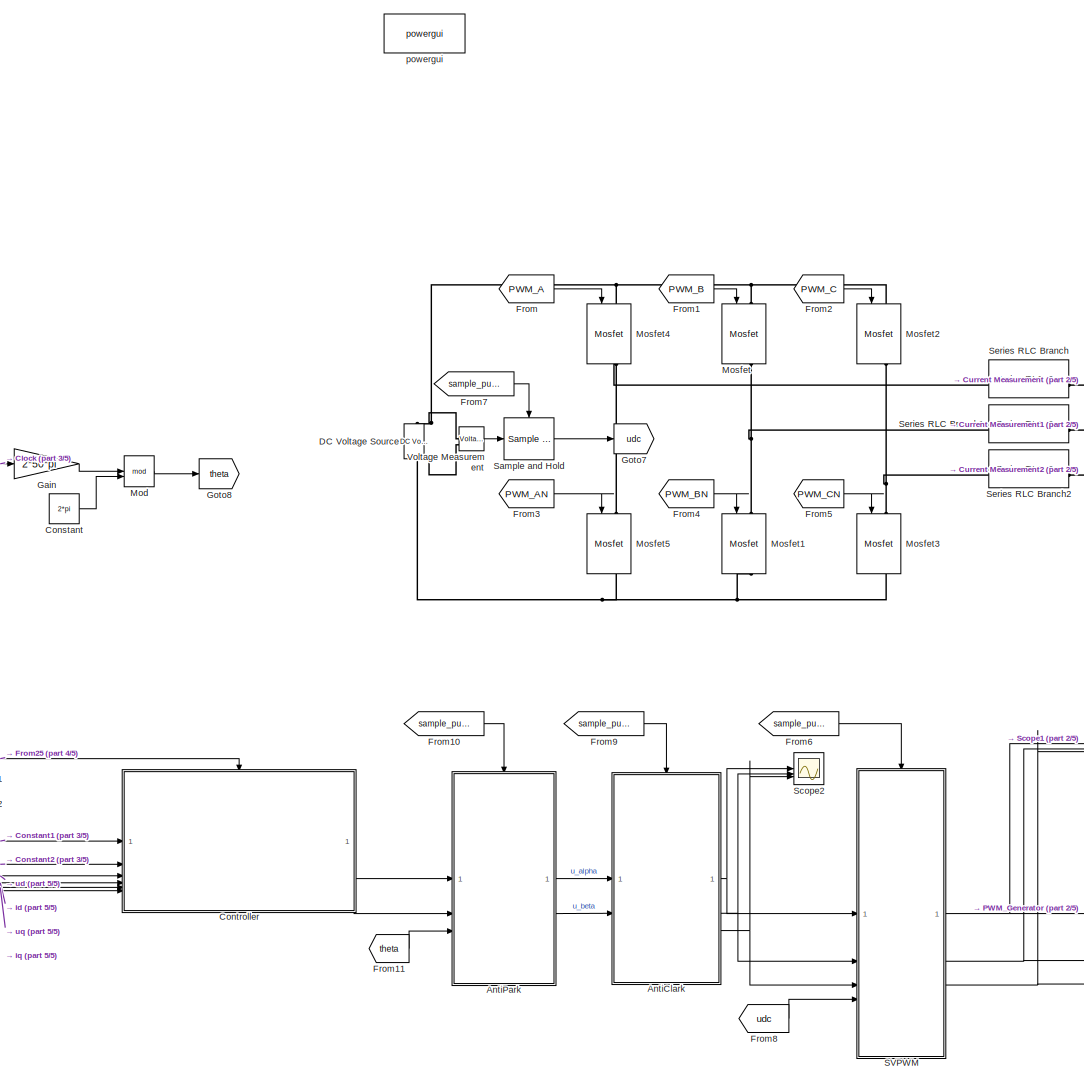
[diagram: root canvas - part 1/5, central region]
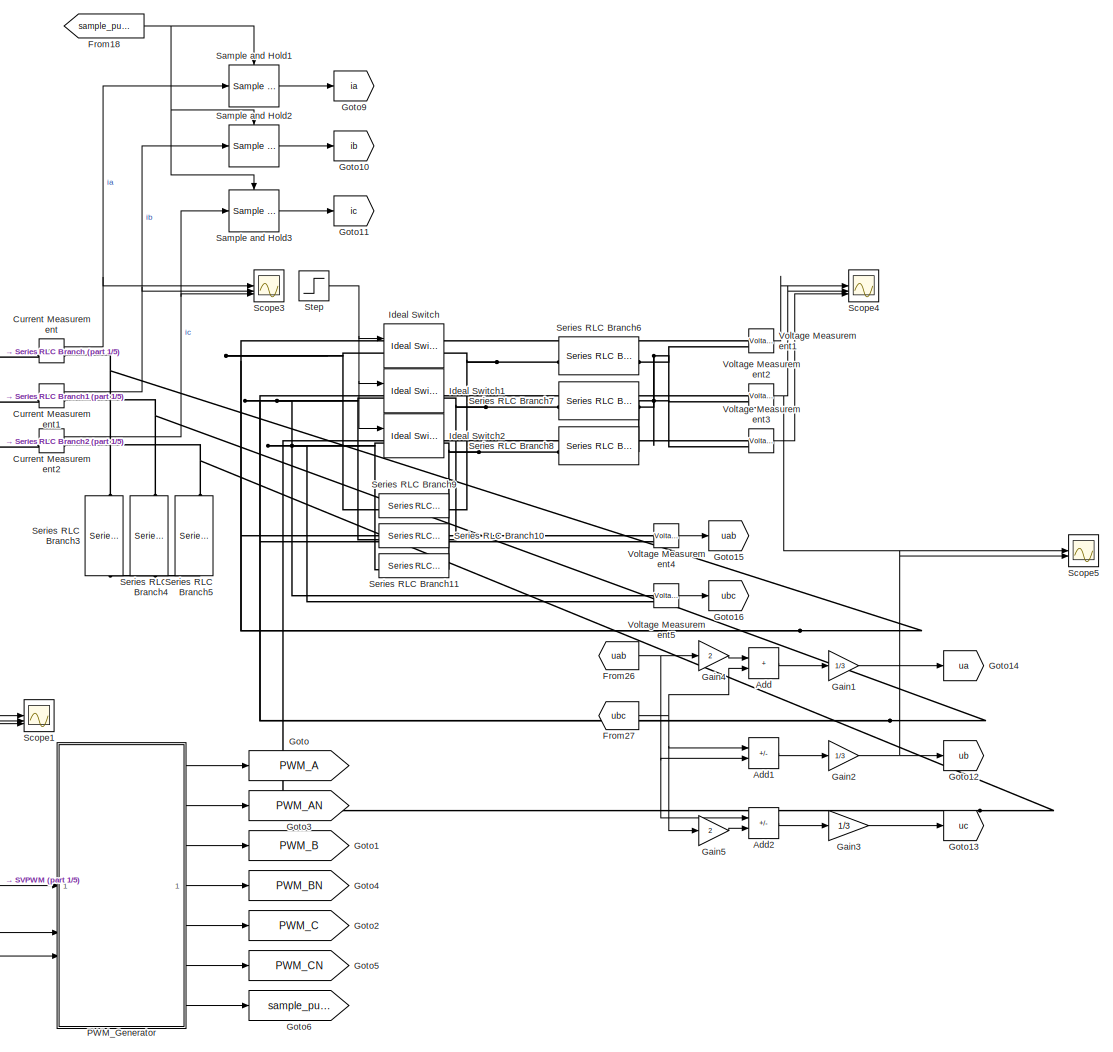
[diagram: root canvas - part 2/5, middle right region]
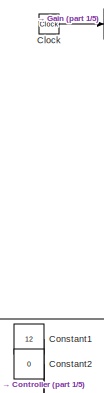
[diagram: root canvas - part 3/5, central region]
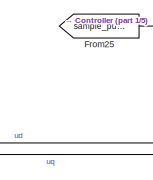
[diagram: root canvas - part 4/5, middle left region]
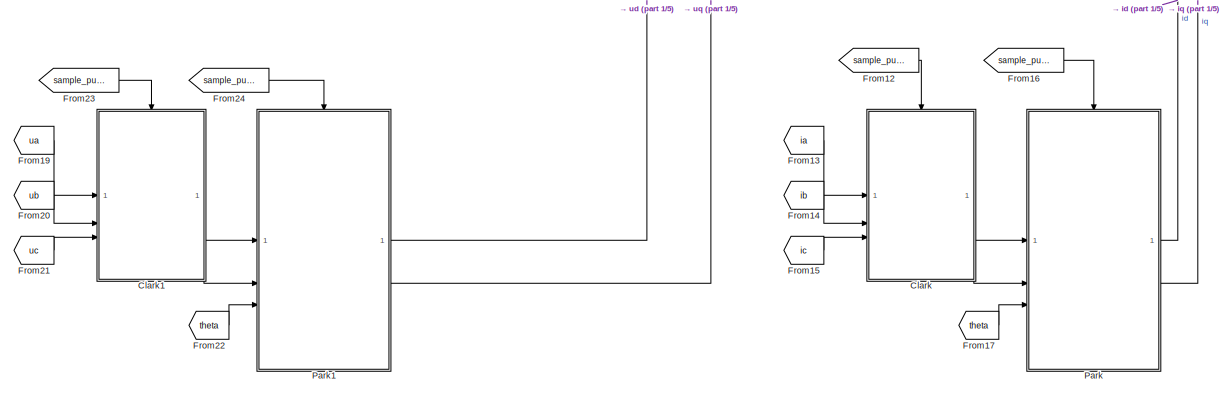
[diagram: root canvas - part 5/5, bottom left region]
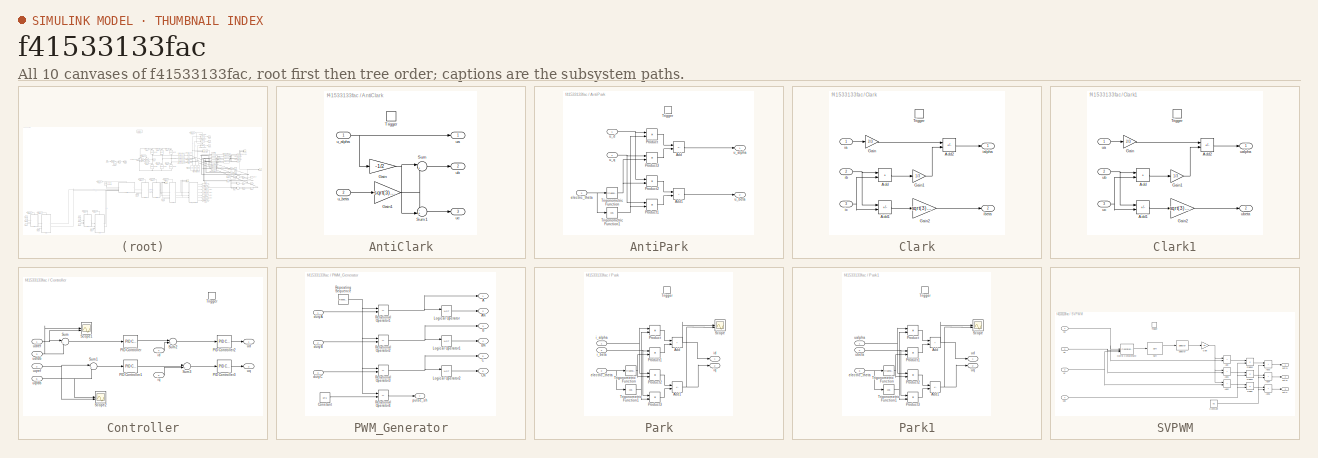
[diagram: thumbnail index - all 10 canvases of the model, root first then tree order]
MODEL slx_f41533133fac
KIND model
CONFIG AbsTol = auto
CONFIG EnableMultiTasking = off
CONFIG FixedStep = 1e-6
CONFIG MaxStep = 1e-7
CONFIG MinStep = auto
CONFIG RelTol = 1e-5
CONFIG SampleTimeConstraint = Unconstrained
CONFIG SolverName = VariableStepAuto
CONFIG StartTime = 0.0
CONFIG StopTime = 1
BLOCK [Sum] Add
  IconShape = rectangular
BLOCK [Sum] Add1
  IconShape = rectangular
  Inputs = +-
BLOCK [Sum] Add2
  IconShape = rectangular
  Inputs = --
BLOCK [SubSystem] AntiClark
BLOCK [Gain] AntiClark/Gain
  Gain = -1/2
BLOCK [Gain] AntiClark/Gain1
  Gain = sqrt(3)/2
BLOCK [Sum] AntiClark/Sum
  Inputs = |++
BLOCK [Sum] AntiClark/Sum1
  Inputs = -+|
BLOCK [TriggerPort] AntiClark/Trigger
  StatesWhenEnabling = held
  VariantControl = (inherit)
BLOCK [Inport] AntiClark/u_alpha
BLOCK [Inport] AntiClark/u_beta
  Port = 2
BLOCK [Outport] AntiClark/ua
BLOCK [Outport] AntiClark/ub
  Port = 2
BLOCK [Outport] AntiClark/uc
  Port = 3
BLOCK [SubSystem] AntiPark
BLOCK [Sum] AntiPark/Add
  IconShape = rectangular
  Inputs = +-
BLOCK [Sum] AntiPark/Add1
  IconShape = rectangular
BLOCK [Product] AntiPark/Product
BLOCK [Product] AntiPark/Product1
BLOCK [Product] AntiPark/Product2
BLOCK [Product] AntiPark/Product3
BLOCK [TriggerPort] AntiPark/Trigger
  StatesWhenEnabling = held
  VariantControl = (inherit)
BLOCK [Trigonometry] AntiPark/Trigonometric Function
BLOCK [Trigonometry] AntiPark/Trigonometric Function1
  Operator = cos
BLOCK [Inport] AntiPark/electric_theta
  Port = 3
BLOCK [Outport] AntiPark/u_alpha
BLOCK [Outport] AntiPark/u_beta
  Port = 2
BLOCK [Inport] AntiPark/u_d
BLOCK [Inport] AntiPark/u_q
  Port = 2
BLOCK [SubSystem] Clark
BLOCK [Sum] Clark/Add
  IconShape = rectangular
BLOCK [Sum] Clark/Add1
  IconShape = rectangular
  Inputs = +-
BLOCK [Sum] Clark/Add2
  IconShape = rectangular
  Inputs = +-
BLOCK [Gain] Clark/Gain
  Gain = 2/3
BLOCK [Gain] Clark/Gain1
  Gain = 1/3
BLOCK [Gain] Clark/Gain2
  Gain = sqrt(3)/3
BLOCK [TriggerPort] Clark/Trigger
  StatesWhenEnabling = held
  VariantControl = (inherit)
BLOCK [Inport] Clark/ia
BLOCK [Outport] Clark/ialpha
BLOCK [Inport] Clark/ib
  Port = 2
BLOCK [Outport] Clark/ibeta
  Port = 2
BLOCK [Inport] Clark/ic
  Port = 3
BLOCK [SubSystem] Clark1
BLOCK [Sum] Clark1/Add
  IconShape = rectangular
BLOCK [Sum] Clark1/Add1
  IconShape = rectangular
  Inputs = +-
BLOCK [Sum] Clark1/Add2
  IconShape = rectangular
  Inputs = +-
BLOCK [Gain] Clark1/Gain
  Gain = 2/3
BLOCK [Gain] Clark1/Gain1
  Gain = 1/3
BLOCK [Gain] Clark1/Gain2
  Gain = sqrt(3)/3
BLOCK [TriggerPort] Clark1/Trigger
  StatesWhenEnabling = held
  VariantControl = (inherit)
BLOCK [Inport] Clark1/ua
BLOCK [Outport] Clark1/ualpha
BLOCK [Inport] Clark1/ub
  Port = 2
BLOCK [Outport] Clark1/ubeta
  Port = 2
BLOCK [Inport] Clark1/uc
  Port = 3
BLOCK [Clock] Clock
BLOCK [Constant] Constant
  Value = 2*pi
BLOCK [Constant] Constant1
  Value = 12
BLOCK [Constant] Constant2
  Value = 0
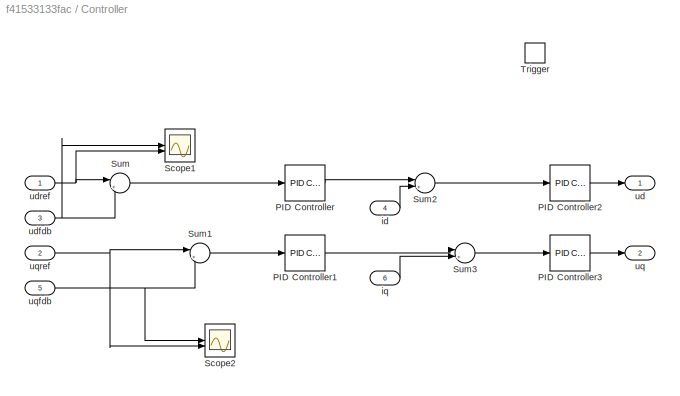
BLOCK [SubSystem] Controller
BLOCK [Reference] Controller/PID Controller  REF=slpidlib/PID Controller
  LibrarySourceBlock = simulink/Continuous/PID Controller
  SourceBlock = slpidlib/PID Controller
  SourceType = PID 1dof
BLOCK [Reference] Controller/PID Controller1  REF=slpidlib/PID Controller
  LibrarySourceBlock = simulink/Continuous/PID Controller
  SourceBlock = slpidlib/PID Controller
  SourceType = PID 1dof
BLOCK [Reference] Controller/PID Controller2  REF=slpidlib/PID Controller
  LibrarySourceBlock = simulink/Continuous/PID Controller
  SourceBlock = slpidlib/PID Controller
  SourceType = PID 1dof
BLOCK [Reference] Controller/PID Controller3  REF=slpidlib/PID Controller
  LibrarySourceBlock = simulink/Continuous/PID Controller
  SourceBlock = slpidlib/PID Controller
  SourceType = PID 1dof
BLOCK [Scope] Controller/Scope1
  Floating = off
  NumInputPorts = 2
  ScopeSpecificationString = Simulink.scopes.TimeScopeBlockCfg('CurrentConfiguration', extmgr.ConfigurationSet(extmgr.Configuration('Core','General UI',true,'FigureColor',[1 1 1]),extmgr.Configuration('Core','Source UI',true),extmgr.Configuration('Sources','WiredSimulink',true,'DataLoggingVariableName','ScopeData4'),extmgr.Configuration('Visuals','Time Domain',true,'SerializedDisplays',{struct('MinYLimReal','-1.90257','MaxYLi...<+2353ch>
BLOCK [Scope] Controller/Scope2
  Floating = off
  NumInputPorts = 2
  ScopeSpecificationString = Simulink.scopes.TimeScopeBlockCfg('CurrentConfiguration', extmgr.ConfigurationSet(extmgr.Configuration('Core','General UI',true,'FigureColor',[1 1 1]),extmgr.Configuration('Core','Source UI',true),extmgr.Configuration('Sources','WiredSimulink',true,'DataLoggingVariableName','ScopeData5'),extmgr.Configuration('Visuals','Time Domain',true,'SerializedDisplays',{struct('MinYLimReal','-0.5238','MaxYLim...<+2579ch>
BLOCK [Sum] Controller/Sum
  Inputs = |+-
BLOCK [Sum] Controller/Sum1
  Inputs = |+-
BLOCK [Sum] Controller/Sum2
  Inputs = |+-
BLOCK [Sum] Controller/Sum3
  Inputs = |+-
BLOCK [TriggerPort] Controller/Trigger
  StatesWhenEnabling = held
  VariantControl = (inherit)
BLOCK [Inport] Controller/id
  Port = 4
BLOCK [Inport] Controller/iq
  Port = 6
BLOCK [Outport] Controller/ud
BLOCK [Inport] Controller/udfdb
  Port = 3
BLOCK [Inport] Controller/udref
BLOCK [Outport] Controller/uq
  Port = 2
BLOCK [Inport] Controller/uqfdb
  Port = 5
BLOCK [Inport] Controller/uqref
  Port = 2
BLOCK [Reference] Current Measurement  REF=spsCurrentMeasurementLib/Current Measurement
  LibrarySourceBlock = sps_lib/Sensors and Measurements/Current Measurement
  SourceBlock = spsCurrentMeasurementLib/Current Measurement
  SourceType = Current Measurement
  UserDataPersistent = on
BLOCK [Reference] Current Measurement1  REF=spsCurrentMeasurementLib/Current Measurement
  LibrarySourceBlock = sps_lib/Sensors and Measurements/Current Measurement
  SourceBlock = spsCurrentMeasurementLib/Current Measurement
  SourceType = Current Measurement
  UserDataPersistent = on
BLOCK [Reference] Current Measurement2  REF=spsCurrentMeasurementLib/Current Measurement
  LibrarySourceBlock = sps_lib/Sensors and Measurements/Current Measurement
  SourceBlock = spsCurrentMeasurementLib/Current Measurement
  SourceType = Current Measurement
  UserDataPersistent = on
BLOCK [Reference] DC Voltage Source  REF=spsDCVoltageSourceLib/DC Voltage Source
  LibrarySourceBlock = sps_lib/Sources/DC Voltage Source
  SourceBlock = spsDCVoltageSourceLib/DC Voltage Source
  SourceType = DC Voltage Source
BLOCK [From] From
  GotoTag = PWM_A
BLOCK [From] From1
  GotoTag = PWM_B
BLOCK [From] From10
  GotoTag = sample_pulse
BLOCK [From] From11
  GotoTag = theta
BLOCK [From] From12
  GotoTag = sample_pulse
BLOCK [From] From13
  GotoTag = ia
BLOCK [From] From14
  GotoTag = ib
BLOCK [From] From15
  GotoTag = ic
BLOCK [From] From16
  GotoTag = sample_pulse
BLOCK [From] From17
  GotoTag = theta
BLOCK [From] From18
  GotoTag = sample_pulse
BLOCK [From] From19
  GotoTag = ua
BLOCK [From] From2
  GotoTag = PWM_C
BLOCK [From] From20
  GotoTag = ub
BLOCK [From] From21
  GotoTag = uc
BLOCK [From] From22
  GotoTag = theta
BLOCK [From] From23
  GotoTag = sample_pulse
BLOCK [From] From24
  GotoTag = sample_pulse
BLOCK [From] From25
  GotoTag = sample_pulse
BLOCK [From] From26
  GotoTag = uab
BLOCK [From] From27
  GotoTag = ubc
BLOCK [From] From3
  GotoTag = PWM_AN
BLOCK [From] From4
  GotoTag = PWM_BN
BLOCK [From] From5
  GotoTag = PWM_CN
BLOCK [From] From6
  GotoTag = sample_pulse
BLOCK [From] From7
  GotoTag = sample_pulse
BLOCK [From] From8
  GotoTag = udc
BLOCK [From] From9
  GotoTag = sample_pulse
BLOCK [Gain] Gain
  Gain = 2*50*pi
BLOCK [Gain] Gain1
  Gain = 1/3
BLOCK [Gain] Gain2
  Gain = 1/3
BLOCK [Gain] Gain3
  Gain = 1/3
BLOCK [Gain] Gain4
  Gain = 2
BLOCK [Gain] Gain5
  Gain = 2
BLOCK [Goto] Goto
  GotoTag = PWM_A
BLOCK [Goto] Goto1
  GotoTag = PWM_B
BLOCK [Goto] Goto10
  GotoTag = ib
BLOCK [Goto] Goto11
  GotoTag = ic
BLOCK [Goto] Goto12
  GotoTag = ub
BLOCK [Goto] Goto13
  GotoTag = uc
BLOCK [Goto] Goto14
  GotoTag = ua
BLOCK [Goto] Goto15
  GotoTag = uab
BLOCK [Goto] Goto16
  GotoTag = ubc
BLOCK [Goto] Goto2
  GotoTag = PWM_C
BLOCK [Goto] Goto3
  GotoTag = PWM_AN
BLOCK [Goto] Goto4
  GotoTag = PWM_BN
BLOCK [Goto] Goto5
  GotoTag = PWM_CN
BLOCK [Goto] Goto6
  GotoTag = sample_pulse
BLOCK [Goto] Goto7
  GotoTag = udc
BLOCK [Goto] Goto8
  GotoTag = theta
BLOCK [Goto] Goto9
  GotoTag = ia
BLOCK [Reference] Ideal Switch  REF=spsIdealSwitchLib/Ideal Switch
  LibrarySourceBlock = sps_lib/Power Electronics/Ideal Switch
  SourceBlock = spsIdealSwitchLib/Ideal Switch
  SourceType = Ideal Switch
BLOCK [Reference] Ideal Switch1  REF=spsIdealSwitchLib/Ideal Switch
  LibrarySourceBlock = sps_lib/Power Electronics/Ideal Switch
  SourceBlock = spsIdealSwitchLib/Ideal Switch
  SourceType = Ideal Switch
BLOCK [Reference] Ideal Switch2  REF=spsIdealSwitchLib/Ideal Switch
  LibrarySourceBlock = sps_lib/Power Electronics/Ideal Switch
  SourceBlock = spsIdealSwitchLib/Ideal Switch
  SourceType = Ideal Switch
BLOCK [Math] Mod
  Operator = mod
BLOCK [Reference] Mosfet  REF=spsMosfetLib/Mosfet
  LibrarySourceBlock = sps_lib/Power Electronics/Mosfet
  NameLocation = left
  SourceBlock = spsMosfetLib/Mosfet
  SourceType = Mosfet
BLOCK [Reference] Mosfet1  REF=spsMosfetLib/Mosfet
  LibrarySourceBlock = sps_lib/Power Electronics/Mosfet
  NameLocation = left
  SourceBlock = spsMosfetLib/Mosfet
  SourceType = Mosfet
BLOCK [Reference] Mosfet2  REF=spsMosfetLib/Mosfet
  LibrarySourceBlock = sps_lib/Power Electronics/Mosfet
  NameLocation = left
  SourceBlock = spsMosfetLib/Mosfet
  SourceType = Mosfet
BLOCK [Reference] Mosfet3  REF=spsMosfetLib/Mosfet
  LibrarySourceBlock = sps_lib/Power Electronics/Mosfet
  NameLocation = left
  SourceBlock = spsMosfetLib/Mosfet
  SourceType = Mosfet
BLOCK [Reference] Mosfet4  REF=spsMosfetLib/Mosfet
  LibrarySourceBlock = sps_lib/Power Electronics/Mosfet
  NameLocation = left
  SourceBlock = spsMosfetLib/Mosfet
  SourceType = Mosfet
BLOCK [Reference] Mosfet5  REF=spsMosfetLib/Mosfet
  LibrarySourceBlock = sps_lib/Power Electronics/Mosfet
  NameLocation = left
  SourceBlock = spsMosfetLib/Mosfet
  SourceType = Mosfet
BLOCK [SubSystem] PWM_Generator
BLOCK [Outport] PWM_Generator/A
BLOCK [Outport] PWM_Generator/AN
  Port = 2
BLOCK [Outport] PWM_Generator/B
  Port = 3
BLOCK [Outport] PWM_Generator/BN
  Port = 4
BLOCK [Outport] PWM_Generator/C
  Port = 5
BLOCK [Outport] PWM_Generator/CN
  Port = 6
BLOCK [Constant] PWM_Generator/Constant
  Value = 1e-6
BLOCK [Logic] PWM_Generator/Logical Operator
  AllPortsSameDT = off
  Operator = NOT
  OutDataTypeStr = boolean
BLOCK [Logic] PWM_Generator/Logical Operator1
  AllPortsSameDT = off
  Operator = NOT
  OutDataTypeStr = boolean
BLOCK [Logic] PWM_Generator/Logical Operator2
  AllPortsSameDT = off
  Operator = NOT
  OutDataTypeStr = boolean
BLOCK [RelationalOperator] PWM_Generator/Relational Operator1
  InputSameDT = off
  Operator = <=
  OutDataTypeStr = boolean
  RndMeth = Simplest
BLOCK [RelationalOperator] PWM_Generator/Relational Operator2
  InputSameDT = off
  Operator = <=
  OutDataTypeStr = boolean
  RndMeth = Simplest
BLOCK [RelationalOperator] PWM_Generator/Relational Operator3
  InputSameDT = off
  Operator = <=
  OutDataTypeStr = boolean
  RndMeth = Simplest
BLOCK [RelationalOperator] PWM_Generator/Relational Operator4
  InputSameDT = off
  Operator = <=
  OutDataTypeStr = boolean
  RndMeth = Simplest
BLOCK [Reference] PWM_Generator/Repeating Sequence  REF=simulink/Sources/Repeating
Sequence
  SourceBlock = simulink/Sources/Repeating\nSequence
  SourceType = Repeating table
BLOCK [Inport] PWM_Generator/dutyA
BLOCK [Inport] PWM_Generator/dutyB
  Port = 2
BLOCK [Inport] PWM_Generator/dutyC
  Port = 3
BLOCK [Outport] PWM_Generator/pulse_sh
  Port = 7
BLOCK [SubSystem] Park
BLOCK [Sum] Park/Add
  IconShape = rectangular
BLOCK [Sum] Park/Add1
  IconShape = rectangular
  Inputs = -+
BLOCK [Product] Park/Product
BLOCK [Product] Park/Product1
BLOCK [Product] Park/Product2
BLOCK [Product] Park/Product3
BLOCK [Scope] Park/Scope
  Floating = off
  NumInputPorts = 2
  ScopeSpecificationString = Simulink.scopes.TimeScopeBlockCfg('CurrentConfiguration', extmgr.ConfigurationSet(extmgr.Configuration('Core','General UI',true),extmgr.Configuration('Core','Source UI',true),extmgr.Configuration('Sources','WiredSimulink',true,'DataLoggingVariableName','ScopeData3'),extmgr.Configuration('Visuals','Time Domain',true,'SerializedDisplays',{struct('MinYLimReal','-0.53079','MaxYLimReal','2.90578','YLab...<+1369ch>
BLOCK [TriggerPort] Park/Trigger
  StatesWhenEnabling = held
  VariantControl = (inherit)
BLOCK [Trigonometry] Park/Trigonometric Function
BLOCK [Trigonometry] Park/Trigonometric Function1
  Operator = cos
BLOCK [Inport] Park/electric_theta
  Port = 3
BLOCK [Inport] Park/i_alpha
BLOCK [Inport] Park/i_beta
  Port = 2
BLOCK [Outport] Park/id
BLOCK [Outport] Park/iq
  Port = 2
BLOCK [SubSystem] Park1
BLOCK [Sum] Park1/Add
  IconShape = rectangular
BLOCK [Sum] Park1/Add1
  IconShape = rectangular
  Inputs = -+
BLOCK [Product] Park1/Product
BLOCK [Product] Park1/Product1
BLOCK [Product] Park1/Product2
BLOCK [Product] Park1/Product3
BLOCK [Scope] Park1/Scope
  Floating = off
  NumInputPorts = 2
  ScopeSpecificationString = Simulink.scopes.TimeScopeBlockCfg('CurrentConfiguration', extmgr.ConfigurationSet(extmgr.Configuration('Core','General UI',true),extmgr.Configuration('Core','Source UI',true),extmgr.Configuration('Sources','WiredSimulink',true,'DataLoggingVariableName','ScopeData3'),extmgr.Configuration('Visuals','Time Domain',true,'SerializedDisplays',{struct('MinYLimReal','-0.53079','MaxYLimReal','2.90578','YLab...<+1369ch>
BLOCK [TriggerPort] Park1/Trigger
  StatesWhenEnabling = held
  VariantControl = (inherit)
BLOCK [Trigonometry] Park1/Trigonometric Function
BLOCK [Trigonometry] Park1/Trigonometric Function1
  Operator = cos
BLOCK [Inport] Park1/electric_theta
  Port = 3
BLOCK [Inport] Park1/ualpha
BLOCK [Inport] Park1/ubeta
  Port = 2
BLOCK [Outport] Park1/ud
BLOCK [Outport] Park1/uq
  Port = 2
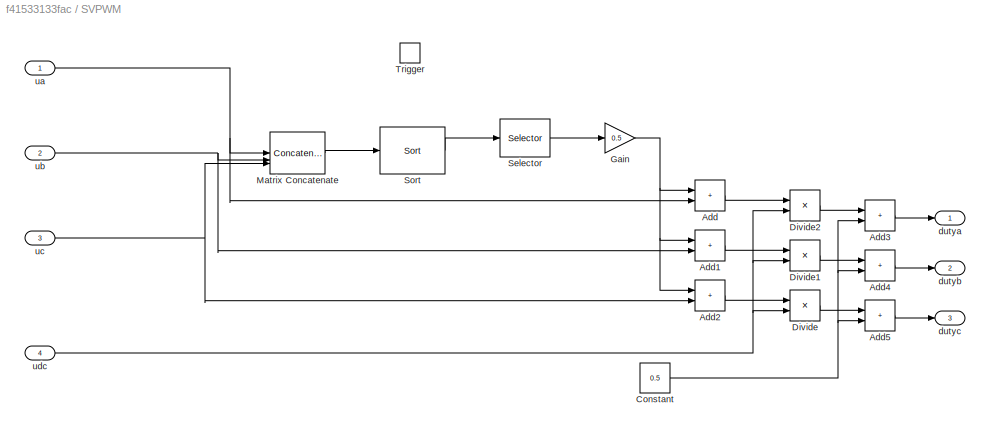
BLOCK [SubSystem] SVPWM
BLOCK [Sum] SVPWM/Add
  IconShape = rectangular
BLOCK [Sum] SVPWM/Add1
  IconShape = rectangular
BLOCK [Sum] SVPWM/Add2
  IconShape = rectangular
BLOCK [Sum] SVPWM/Add3
  IconShape = rectangular
BLOCK [Sum] SVPWM/Add4
  IconShape = rectangular
BLOCK [Sum] SVPWM/Add5
  IconShape = rectangular
BLOCK [Constant] SVPWM/Constant
  Value = 0.5
BLOCK [Product] SVPWM/Divide
  Inputs = */
BLOCK [Product] SVPWM/Divide1
  Inputs = */
BLOCK [Product] SVPWM/Divide2
  Inputs = */
BLOCK [Gain] SVPWM/Gain
  Gain = 0.5
BLOCK [Concatenate] SVPWM/Matrix Concatenate
  ConcatenateDimension = 2
  NumInputs = 3
BLOCK [Selector] SVPWM/Selector
  IndexOptions = Index vector (dialog)
  Indices = 2
  InputPortWidth = 3
  OutputSizes = 1
BLOCK [Reference] SVPWM/Sort  REF=dspstat3/Sort
  SourceBlock = dspstat3/Sort
  SourceType = Sort
BLOCK [TriggerPort] SVPWM/Trigger
  StatesWhenEnabling = held
  VariantControl = (inherit)
BLOCK [Outport] SVPWM/dutya
BLOCK [Outport] SVPWM/dutyb
  Port = 2
BLOCK [Outport] SVPWM/dutyc
  Port = 3
BLOCK [Inport] SVPWM/ua
BLOCK [Inport] SVPWM/ub
  Port = 2
BLOCK [Inport] SVPWM/uc
  Port = 3
BLOCK [Inport] SVPWM/udc
  Port = 4
BLOCK [Reference] Sample and Hold  REF=dspsigops/Sample
and Hold
  SourceBlock = dspsigops/Sample\nand Hold
  SourceType = Sample and Hold
BLOCK [Reference] Sample and Hold1  REF=dspsigops/Sample
and Hold
  SourceBlock = dspsigops/Sample\nand Hold
  SourceType = Sample and Hold
BLOCK [Reference] Sample and Hold2  REF=dspsigops/Sample
and Hold
  SourceBlock = dspsigops/Sample\nand Hold
  SourceType = Sample and Hold
BLOCK [Reference] Sample and Hold3  REF=dspsigops/Sample
and Hold
  SourceBlock = dspsigops/Sample\nand Hold
  SourceType = Sample and Hold
BLOCK [Scope] Scope1
  Floating = off
  NumInputPorts = 3
  ScopeSpecificationString = Simulink.scopes.TimeScopeBlockCfg('CurrentConfiguration', extmgr.ConfigurationSet(extmgr.Configuration('Core','General UI',true,'FigureColor',[1 1 1]),extmgr.Configuration('Core','Source UI',true),extmgr.Configuration('Sources','WiredSimulink',true,'DataLoggingVariableName','ScopeData1'),extmgr.Configuration('Visuals','Time Domain',true,'SerializedDisplays',{struct('MinYLimReal','0.01195','MaxYLim...<+2727ch>
BLOCK [Scope] Scope2
  Floating = off
  NumInputPorts = 3
  ScopeSpecificationString = Simulink.scopes.TimeScopeBlockCfg('CurrentConfiguration', extmgr.ConfigurationSet(extmgr.Configuration('Core','General UI',true,'FigureColor',[1 1 1]),extmgr.Configuration('Core','Source UI',true),extmgr.Configuration('Sources','WiredSimulink',true,'DataLoggingVariableName','ScopeData2'),extmgr.Configuration('Visuals','Time Domain',true,'SerializedDisplays',{struct('MinYLimReal','-25.00000','MaxYL...<+2699ch>
BLOCK [Scope] Scope3
  Floating = off
  NumInputPorts = 3
  ScopeSpecificationString = Simulink.scopes.TimeScopeBlockCfg('CurrentConfiguration', extmgr.ConfigurationSet(extmgr.Configuration('Core','General UI',true,'FigureColor',[1 1 1]),extmgr.Configuration('Core','Source UI',true),extmgr.Configuration('Sources','WiredSimulink',true,'DataLoggingVariableName','ScopeData1'),extmgr.Configuration('Visuals','Time Domain',true,'SerializedDisplays',{struct('MinYLimReal','-2.97396','MaxYLi...<+2706ch>
BLOCK [Scope] Scope4
  Floating = off
  NumInputPorts = 3
  ScopeSpecificationString = Simulink.scopes.TimeScopeBlockCfg('CurrentConfiguration', extmgr.ConfigurationSet(extmgr.Configuration('Core','General UI',true,'FigureColor',[1 1 1]),extmgr.Configuration('Core','Source UI',true),extmgr.Configuration('Sources','WiredSimulink',true,'DataLoggingVariableName','ScopeData1'),extmgr.Configuration('Visuals','Time Domain',true,'SerializedDisplays',{struct('MinYLimReal','-18.99616','MaxYL...<+2774ch>
BLOCK [Scope] Scope5
  Floating = off
  NumInputPorts = 3
  ScopeSpecificationString = Simulink.scopes.TimeScopeBlockCfg('CurrentConfiguration', extmgr.ConfigurationSet(extmgr.Configuration('Core','General UI',true,'FigureColor',[1 1 1]),extmgr.Configuration('Core','Source UI',true),extmgr.Configuration('Sources','WiredSimulink',true,'DataLoggingVariableName','ScopeData2'),extmgr.Configuration('Visuals','Time Domain',true,'SerializedDisplays',{struct('MinYLimReal','-25.10584','MaxYL...<+2743ch>
BLOCK [Reference] Series RLC Branch  REF=spsSeriesRLCBranchLib/Series RLC Branch
  LibrarySourceBlock = sps_lib/Passives/Series RLC Branch
  SourceBlock = spsSeriesRLCBranchLib/Series RLC Branch
  SourceType = Series RLC Branch
BLOCK [Reference] Series RLC Branch1  REF=spsSeriesRLCBranchLib/Series RLC Branch
  LibrarySourceBlock = sps_lib/Passives/Series RLC Branch
  SourceBlock = spsSeriesRLCBranchLib/Series RLC Branch
  SourceType = Series RLC Branch
BLOCK [Reference] Series RLC Branch10  REF=spsSeriesRLCBranchLib/Series RLC Branch
  LibrarySourceBlock = sps_lib/Passives/Series RLC Branch
  SourceBlock = spsSeriesRLCBranchLib/Series RLC Branch
  SourceType = Series RLC Branch
BLOCK [Reference] Series RLC Branch11  REF=spsSeriesRLCBranchLib/Series RLC Branch
  LibrarySourceBlock = sps_lib/Passives/Series RLC Branch
  SourceBlock = spsSeriesRLCBranchLib/Series RLC Branch
  SourceType = Series RLC Branch
BLOCK [Reference] Series RLC Branch2  REF=spsSeriesRLCBranchLib/Series RLC Branch
  LibrarySourceBlock = sps_lib/Passives/Series RLC Branch
  SourceBlock = spsSeriesRLCBranchLib/Series RLC Branch
  SourceType = Series RLC Branch
BLOCK [Reference] Series RLC Branch3  REF=spsSeriesRLCBranchLib/Series RLC Branch
  LibrarySourceBlock = sps_lib/Passives/Series RLC Branch
  NameLocation = left
  SourceBlock = spsSeriesRLCBranchLib/Series RLC Branch
  SourceType = Series RLC Branch
BLOCK [Reference] Series RLC Branch4  REF=spsSeriesRLCBranchLib/Series RLC Branch
  LibrarySourceBlock = sps_lib/Passives/Series RLC Branch
  NameLocation = left
  SourceBlock = spsSeriesRLCBranchLib/Series RLC Branch
  SourceType = Series RLC Branch
BLOCK [Reference] Series RLC Branch5  REF=spsSeriesRLCBranchLib/Series RLC Branch
  LibrarySourceBlock = sps_lib/Passives/Series RLC Branch
  NameLocation = left
  SourceBlock = spsSeriesRLCBranchLib/Series RLC Branch
  SourceType = Series RLC Branch
BLOCK [Reference] Series RLC Branch6  REF=spsSeriesRLCBranchLib/Series RLC Branch
  LibrarySourceBlock = sps_lib/Passives/Series RLC Branch
  SourceBlock = spsSeriesRLCBranchLib/Series RLC Branch
  SourceType = Series RLC Branch
BLOCK [Reference] Series RLC Branch7  REF=spsSeriesRLCBranchLib/Series RLC Branch
  LibrarySourceBlock = sps_lib/Passives/Series RLC Branch
  SourceBlock = spsSeriesRLCBranchLib/Series RLC Branch
  SourceType = Series RLC Branch
BLOCK [Reference] Series RLC Branch8  REF=spsSeriesRLCBranchLib/Series RLC Branch
  LibrarySourceBlock = sps_lib/Passives/Series RLC Branch
  SourceBlock = spsSeriesRLCBranchLib/Series RLC Branch
  SourceType = Series RLC Branch
BLOCK [Reference] Series RLC Branch9  REF=spsSeriesRLCBranchLib/Series RLC Branch
  LibrarySourceBlock = sps_lib/Passives/Series RLC Branch
  SourceBlock = spsSeriesRLCBranchLib/Series RLC Branch
  SourceType = Series RLC Branch
BLOCK [Step] Step
  After = 0
  Before = 1
  SampleTime = 0
  Time = 0.5
BLOCK [Reference] Voltage Measurement  REF=spsVoltageMeasurementLib/Voltage Measurement
  LibrarySourceBlock = sps_lib/Sensors and Measurements/Voltage Measurement
  SourceBlock = spsVoltageMeasurementLib/Voltage Measurement
  SourceType = Voltage Measurement
  UserDataPersistent = on
BLOCK [Reference] Voltage Measurement1  REF=spsVoltageMeasurementLib/Voltage Measurement
  LibrarySourceBlock = sps_lib/Sensors and Measurements/Voltage Measurement
  SourceBlock = spsVoltageMeasurementLib/Voltage Measurement
  SourceType = Voltage Measurement
  UserDataPersistent = on
BLOCK [Reference] Voltage Measurement2  REF=spsVoltageMeasurementLib/Voltage Measurement
  LibrarySourceBlock = sps_lib/Sensors and Measurements/Voltage Measurement
  SourceBlock = spsVoltageMeasurementLib/Voltage Measurement
  SourceType = Voltage Measurement
  UserDataPersistent = on
BLOCK [Reference] Voltage Measurement3  REF=spsVoltageMeasurementLib/Voltage Measurement
  LibrarySourceBlock = sps_lib/Sensors and Measurements/Voltage Measurement
  SourceBlock = spsVoltageMeasurementLib/Voltage Measurement
  SourceType = Voltage Measurement
  UserDataPersistent = on
BLOCK [Reference] Voltage Measurement4  REF=spsVoltageMeasurementLib/Voltage Measurement
  LibrarySourceBlock = sps_lib/Sensors and Measurements/Voltage Measurement
  SourceBlock = spsVoltageMeasurementLib/Voltage Measurement
  SourceType = Voltage Measurement
  UserDataPersistent = on
BLOCK [Reference] Voltage Measurement5  REF=spsVoltageMeasurementLib/Voltage Measurement
  LibrarySourceBlock = sps_lib/Sensors and Measurements/Voltage Measurement
  SourceBlock = spsVoltageMeasurementLib/Voltage Measurement
  SourceType = Voltage Measurement
  UserDataPersistent = on
BLOCK [Reference] powergui  REF=sps_lib/powergui
  Priority = 1
  SourceBlock = sps_lib/powergui
  SourceType = PSB option menu block
LINE Add1:1 -> Gain2:1
LINE Add2:1 -> Gain3:1
LINE Add:1 -> Gain1:1
NET AntiClark/Gain1:1 -> AntiClark/Sum1:1, AntiClark/Sum:2
NET AntiClark/Gain:1 -> AntiClark/Sum1:2, AntiClark/Sum:1
LINE AntiClark/Sum1:1 -> AntiClark/uc:1
LINE AntiClark/Sum:1 -> AntiClark/ub:1
NET AntiClark/u_alpha:1 -> AntiClark/Gain:1, AntiClark/ua:1
LINE AntiClark/u_beta:1 -> AntiClark/Gain1:1
NET AntiClark:1 -> SVPWM:1, Scope2:1
NET AntiClark:2 -> SVPWM:2, Scope2:2
NET AntiClark:3 -> SVPWM:3, Scope2:3
LINE AntiPark/Add1:1 -> AntiPark/u_beta:1
LINE AntiPark/Add:1 -> AntiPark/u_alpha:1
LINE AntiPark/Product1:1 -> AntiPark/Add1:2
LINE AntiPark/Product2:1 -> AntiPark/Add1:1
LINE AntiPark/Product3:1 -> AntiPark/Add:2
LINE AntiPark/Product:1 -> AntiPark/Add:1
NET AntiPark/Trigonometric Function1:1 -> AntiPark/Product1:2, AntiPark/Product:2
NET AntiPark/Trigonometric Function:1 -> AntiPark/Product2:2, AntiPark/Product3:2
NET AntiPark/electric_theta:1 -> AntiPark/Trigonometric Function1:1, AntiPark/Trigonometric Function:1
NET AntiPark/u_d:1 -> AntiPark/Product2:1, AntiPark/Product:1
NET AntiPark/u_q:1 -> AntiPark/Product1:1, AntiPark/Product3:1
LINE AntiPark:1 -> AntiClark:1
LINE AntiPark:2 -> AntiClark:2
LINE Clark/Add1:1 -> Clark/Gain2:1
LINE Clark/Add2:1 -> Clark/ialpha:1
LINE Clark/Add:1 -> Clark/Gain1:1
LINE Clark/Gain1:1 -> Clark/Add2:2
LINE Clark/Gain2:1 -> Clark/ibeta:1
LINE Clark/Gain:1 -> Clark/Add2:1
LINE Clark/ia:1 -> Clark/Gain:1
NET Clark/ib:1 -> Clark/Add1:1, Clark/Add:1
NET Clark/ic:1 -> Clark/Add1:2, Clark/Add:2
LINE Clark1/Add1:1 -> Clark1/Gain2:1
LINE Clark1/Add2:1 -> Clark1/ualpha:1
LINE Clark1/Add:1 -> Clark1/Gain1:1
LINE Clark1/Gain1:1 -> Clark1/Add2:2
LINE Clark1/Gain2:1 -> Clark1/ubeta:1
LINE Clark1/Gain:1 -> Clark1/Add2:1
LINE Clark1/ua:1 -> Clark1/Gain:1
NET Clark1/ub:1 -> Clark1/Add1:1, Clark1/Add:1
NET Clark1/uc:1 -> Clark1/Add1:2, Clark1/Add:2
LINE Clark1:1 -> Park1:1
LINE Clark1:2 -> Park1:2
LINE Clark:1 -> Park:1
LINE Clark:2 -> Park:2
LINE Clock:1 -> Gain:1
LINE Constant1:1 -> Controller:1
LINE Constant2:1 -> Controller:2
LINE Constant:1 -> Mod:2
LINE Controller/PID Controller1:1 -> Controller/Sum3:1
LINE Controller/PID Controller2:1 -> Controller/ud:1
LINE Controller/PID Controller3:1 -> Controller/uq:1
LINE Controller/PID Controller:1 -> Controller/Sum2:1
LINE Controller/Sum1:1 -> Controller/PID Controller1:1
LINE Controller/Sum2:1 -> Controller/PID Controller2:1
LINE Controller/Sum3:1 -> Controller/PID Controller3:1
LINE Controller/Sum:1 -> Controller/PID Controller:1
LINE Controller/id:1 -> Controller/Sum2:2
LINE Controller/iq:1 -> Controller/Sum3:2
NET Controller/udfdb:1 -> Controller/Scope1:1, Controller/Sum:2
NET Controller/udref:1 -> Controller/Scope1:2, Controller/Sum:1
NET Controller/uqfdb:1 -> Controller/Scope2:1, Controller/Sum1:2
NET Controller/uqref:1 -> Controller/Scope2:2, Controller/Sum1:1
LINE Controller:1 -> AntiPark:1
LINE Controller:2 -> AntiPark:2
NET Current Measurement1:1 -> Sample and Hold2:1, Scope3:2
NET Current Measurement2:1 -> Sample and Hold3:1, Scope3:3
NET Current Measurement:1 -> Sample and Hold1:1, Scope3:1
LINE From10:1 -> AntiPark:trigger
LINE From11:1 -> AntiPark:3
LINE From12:1 -> Clark:trigger
LINE From13:1 -> Clark:1
LINE From14:1 -> Clark:2
LINE From15:1 -> Clark:3
LINE From16:1 -> Park:trigger
LINE From17:1 -> Park:3
NET From18:1 -> Sample and Hold1:trigger, Sample and Hold2:trigger, Sample and Hold3:trigger
LINE From19:1 -> Clark1:1
LINE From1:1 -> Mosfet:1
LINE From20:1 -> Clark1:2
LINE From21:1 -> Clark1:3
LINE From22:1 -> Park1:3
LINE From23:1 -> Clark1:trigger
LINE From24:1 -> Park1:trigger
LINE From25:1 -> Controller:trigger
NET From26:1 -> Add1:2, Add2:1, Gain4:1
NET From27:1 -> Add1:1, Add:2, Gain5:1
LINE From2:1 -> Mosfet2:1
LINE From3:1 -> Mosfet5:1
LINE From4:1 -> Mosfet1:1
LINE From5:1 -> Mosfet3:1
LINE From6:1 -> SVPWM:trigger
LINE From7:1 -> Sample and Hold:trigger
LINE From8:1 -> SVPWM:4
LINE From9:1 -> AntiClark:trigger
LINE From:1 -> Mosfet4:1
LINE Gain1:1 -> Goto14:1
NET Gain2:1 -> Goto12:1, Scope5:2
LINE Gain3:1 -> Goto13:1
LINE Gain4:1 -> Add:1
LINE Gain5:1 -> Add2:2
LINE Gain:1 -> Mod:1
LINE Mod:1 -> Goto8:1
LINE PWM_Generator/Constant:1 -> PWM_Generator/Relational Operator4:2
LINE PWM_Generator/Logical Operator1:1 -> PWM_Generator/BN:1
LINE PWM_Generator/Logical Operator2:1 -> PWM_Generator/CN:1
LINE PWM_Generator/Logical Operator:1 -> PWM_Generator/AN:1
NET PWM_Generator/Relational Operator1:1 -> PWM_Generator/A:1, PWM_Generator/Logical Operator:1
NET PWM_Generator/Relational Operator2:1 -> PWM_Generator/B:1, PWM_Generator/Logical Operator1:1
NET PWM_Generator/Relational Operator3:1 -> PWM_Generator/C:1, PWM_Generator/Logical Operator2:1
LINE PWM_Generator/Relational Operator4:1 -> PWM_Generator/pulse_sh:1
NET PWM_Generator/Repeating Sequence:1 -> PWM_Generator/Relational Operator1:1, PWM_Generator/Relational Operator2:1, PWM_Generator/Relational Operator3:1, PWM_Generator/Relational Operator4:1
LINE PWM_Generator/dutyA:1 -> PWM_Generator/Relational Operator1:2
LINE PWM_Generator/dutyB:1 -> PWM_Generator/Relational Operator2:2
LINE PWM_Generator/dutyC:1 -> PWM_Generator/Relational Operator3:2
LINE PWM_Generator:1 -> Goto:1
LINE PWM_Generator:2 -> Goto3:1
LINE PWM_Generator:3 -> Goto1:1
LINE PWM_Generator:4 -> Goto4:1
LINE PWM_Generator:5 -> Goto2:1
LINE PWM_Generator:6 -> Goto5:1
LINE PWM_Generator:7 -> Goto6:1
NET Park/Add1:1 -> Park/Scope:2, Park/iq:1
NET Park/Add:1 -> Park/Scope:1, Park/id:1
LINE Park/Product1:1 -> Park/Add:2
LINE Park/Product2:1 -> Park/Add1:1
LINE Park/Product3:1 -> Park/Add1:2
LINE Park/Product:1 -> Park/Add:1
NET Park/Trigonometric Function1:1 -> Park/Product3:2, Park/Product:2
NET Park/Trigonometric Function:1 -> Park/Product1:2, Park/Product2:2
NET Park/electric_theta:1 -> Park/Trigonometric Function1:1, Park/Trigonometric Function:1
NET Park/i_alpha:1 -> Park/Product2:1, Park/Product:1
NET Park/i_beta:1 -> Park/Product1:1, Park/Product3:1
NET Park1/Add1:1 -> Park1/Scope:2, Park1/uq:1
NET Park1/Add:1 -> Park1/Scope:1, Park1/ud:1
LINE Park1/Product1:1 -> Park1/Add:2
LINE Park1/Product2:1 -> Park1/Add1:1
LINE Park1/Product3:1 -> Park1/Add1:2
LINE Park1/Product:1 -> Park1/Add:1
NET Park1/Trigonometric Function1:1 -> Park1/Product3:2, Park1/Product:2
NET Park1/Trigonometric Function:1 -> Park1/Product1:2, Park1/Product2:2
NET Park1/electric_theta:1 -> Park1/Trigonometric Function1:1, Park1/Trigonometric Function:1
NET Park1/ualpha:1 -> Park1/Product2:1, Park1/Product:1
NET Park1/ubeta:1 -> Park1/Product1:1, Park1/Product3:1
LINE Park1:1 -> Controller:3
LINE Park1:2 -> Controller:5
LINE Park:1 -> Controller:4
LINE Park:2 -> Controller:6
LINE SVPWM/Add1:1 -> SVPWM/Divide1:1
LINE SVPWM/Add2:1 -> SVPWM/Divide:1
LINE SVPWM/Add3:1 -> SVPWM/dutya:1
LINE SVPWM/Add4:1 -> SVPWM/dutyb:1
LINE SVPWM/Add5:1 -> SVPWM/dutyc:1
LINE SVPWM/Add:1 -> SVPWM/Divide2:1
NET SVPWM/Constant:1 -> SVPWM/Add3:2, SVPWM/Add4:2, SVPWM/Add5:2
LINE SVPWM/Divide1:1 -> SVPWM/Add4:1
LINE SVPWM/Divide2:1 -> SVPWM/Add3:1
LINE SVPWM/Divide:1 -> SVPWM/Add5:1
NET SVPWM/Gain:1 -> SVPWM/Add1:1, SVPWM/Add2:1, SVPWM/Add:1
LINE SVPWM/Matrix Concatenate:1 -> SVPWM/Sort:1
LINE SVPWM/Selector:1 -> SVPWM/Gain:1
LINE SVPWM/Sort:1 -> SVPWM/Selector:1
NET SVPWM/ua:1 -> SVPWM/Add:2, SVPWM/Matrix Concatenate:1
NET SVPWM/ub:1 -> SVPWM/Add1:2, SVPWM/Matrix Concatenate:2
NET SVPWM/uc:1 -> SVPWM/Add2:2, SVPWM/Matrix Concatenate:3
NET SVPWM/udc:1 -> SVPWM/Divide1:2, SVPWM/Divide2:2, SVPWM/Divide:2
NET SVPWM:1 -> PWM_Generator:1, Scope1:1
NET SVPWM:2 -> PWM_Generator:2, Scope1:2
NET SVPWM:3 -> PWM_Generator:3, Scope1:3
LINE Sample and Hold1:1 -> Goto9:1
LINE Sample and Hold2:1 -> Goto10:1
LINE Sample and Hold3:1 -> Goto11:1
LINE Sample and Hold:1 -> Goto7:1
NET Step:1 -> Ideal Switch1:1, Ideal Switch2:1, Ideal Switch:1
LINE Voltage Measurement1:1 -> Scope4:1
NET Voltage Measurement2:1 -> Scope4:2, Scope5:1
LINE Voltage Measurement3:1 -> Scope4:3
LINE Voltage Measurement4:1 -> Goto15:1
LINE Voltage Measurement5:1 -> Goto16:1
LINE Voltage Measurement:1 -> Sample and Hold:1
PLINE Current Measurement1:LConn1 -- Series RLC Branch1:RConn1
PNET net1: Current Measurement1:RConn1 -- Ideal Switch1:LConn1 -- Series RLC Branch10:LConn1 -- Series RLC Branch4:LConn1 -- Voltage Measurement2:LConn1 -- Voltage Measurement4:LConn2 -- Voltage Measurement5:LConn1
PLINE Current Measurement2:LConn1 -- Series RLC Branch2:RConn1
PNET net2: Current Measurement2:RConn1 -- Ideal Switch2:LConn1 -- Series RLC Branch11:LConn1 -- Series RLC Branch5:LConn1 -- Voltage Measurement3:LConn1 -- Voltage Measurement5:LConn2
PLINE Current Measurement:LConn1 -- Series RLC Branch:RConn1
PNET net3: Current Measurement:RConn1 -- Ideal Switch:LConn1 -- Series RLC Branch3:LConn1 -- Series RLC Branch9:LConn1 -- Voltage Measurement1:LConn1 -- Voltage Measurement4:LConn1
PNET net4: DC Voltage Source:LConn1 -- Mosfet1:RConn1 -- Mosfet3:RConn1 -- Mosfet5:RConn1 -- Voltage Measurement:LConn2
PNET net5: DC Voltage Source:RConn1 -- Mosfet2:LConn1 -- Mosfet4:LConn1 -- Mosfet:LConn1 -- Voltage Measurement:LConn1
PNET net6: Ideal Switch1:RConn1 -- Series RLC Branch10:RConn1 -- Series RLC Branch7:LConn1
PNET net7: Ideal Switch2:RConn1 -- Series RLC Branch11:RConn1 -- Series RLC Branch8:LConn1
PNET net8: Ideal Switch:RConn1 -- Series RLC Branch6:LConn1 -- Series RLC Branch9:RConn1
PNET net9: Mosfet1:LConn1 -- Mosfet:RConn1 -- Series RLC Branch1:LConn1
PNET net10: Mosfet2:RConn1 -- Mosfet3:LConn1 -- Series RLC Branch2:LConn1
PNET net11: Mosfet4:RConn1 -- Mosfet5:LConn1 -- Series RLC Branch:LConn1
PNET net12: Series RLC Branch3:RConn1 -- Series RLC Branch4:RConn1 -- Series RLC Branch5:RConn1
PNET net13: Series RLC Branch6:RConn1 -- Series RLC Branch7:RConn1 -- Series RLC Branch8:RConn1 -- Voltage Measurement1:LConn2 -- Voltage Measurement2:LConn2 -- Voltage Measurement3:LConn2
note: NET lines group one-source signal fan-out (src -> all destinations, sorted); 1:1 wires keep LINE; PNET lines group multi-terminal physical nets as a canonical sorted terminal list (undirected conserving connections); 2-terminal nets keep the pairwise PLINE form
